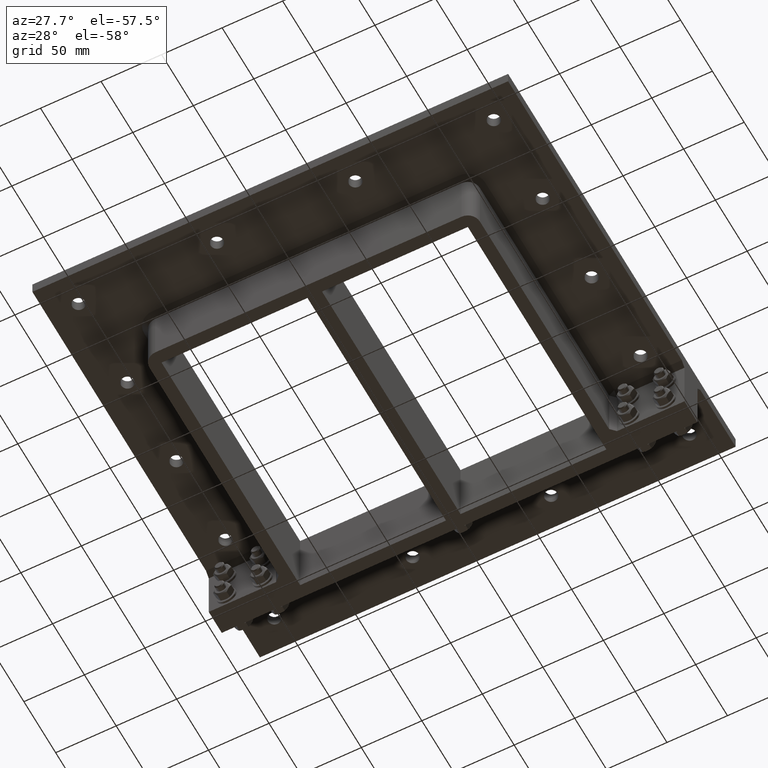
[diagram: clean part render]
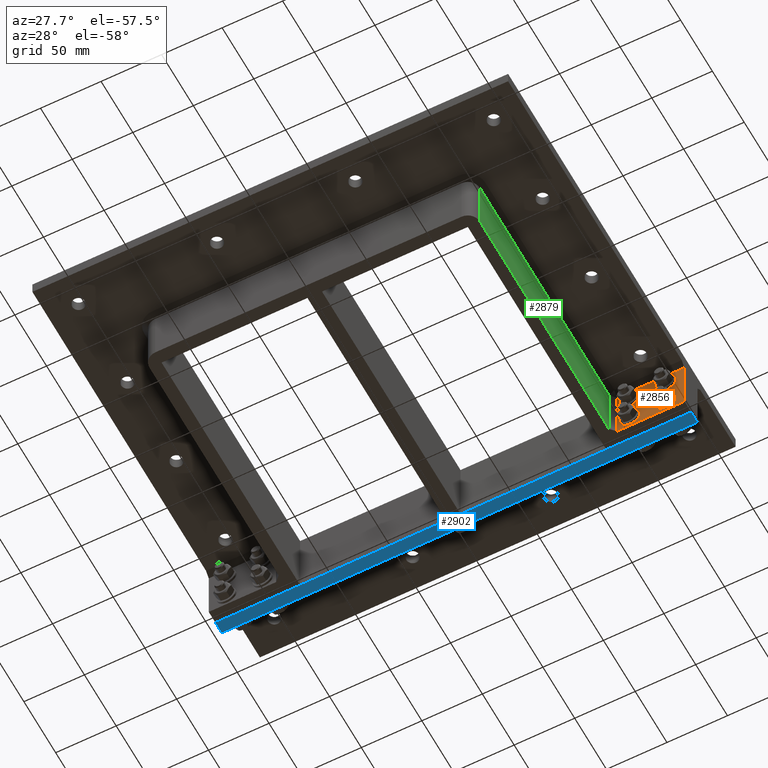
[diagram: same view with three faces highlighted in distinct colors, each labeled with its STEP entity id]
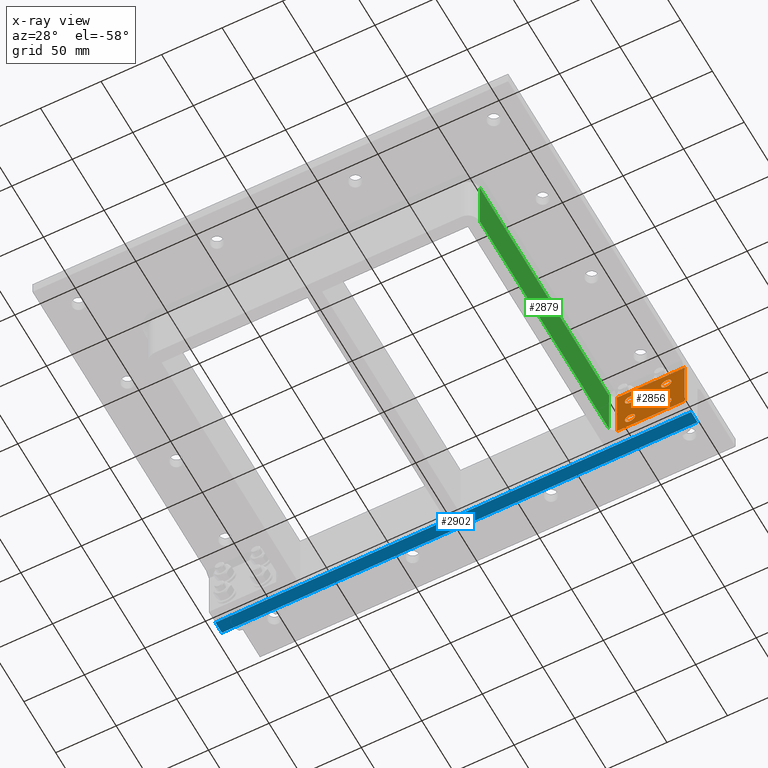
[diagram: x-ray of the same camera — body ghosted, the three highlighted faces saturated]
A machine part, auxiliary view with three faces highlighted in distinct colors.
The next image is the same camera in x-ray (body ghosted, the three faces saturated) — at least one of them is partly hidden behind the body in this view.
Their STEP definitions:

[orange] entity #2856 — the highlighted planar face has unit normal (0, -1, 0).
#237=FACE_BOUND('',#669,.T.);
#238=FACE_BOUND('',#670,.T.);
#239=FACE_BOUND('',#671,.T.);
#240=FACE_BOUND('',#672,.T.);
#342=CIRCLE('',#3253,4.25000000000007);
#344=CIRCLE('',#3256,4.25000000000007);
#346=CIRCLE('',#3259,4.25000000000007);
#348=CIRCLE('',#3262,4.25000000000007);
#493=FACE_OUTER_BOUND('',#668,.T.);
#668=EDGE_LOOP('',(#2085,#2086,#2087,#2088));
#669=EDGE_LOOP('',(#2089));
#670=EDGE_LOOP('',(#2090));
#671=EDGE_LOOP('',(#2091));
#672=EDGE_LOOP('',(#2092));
#907=LINE('',#4454,#1130);
#911=LINE('',#4461,#1134);
#929=LINE('',#4560,#1152);
#930=LINE('',#4561,#1153);
#1130=VECTOR('',#3583,10.);
#1134=VECTOR('',#3589,10.);
#1152=VECTOR('',#3697,10.);
#1153=VECTOR('',#3698,10.);
#1338=VERTEX_POINT('',#4418);
#1349=VERTEX_POINT('',#4452);
#1350=VERTEX_POINT('',#4457);
#1378=VERTEX_POINT('',#4529);
#1380=VERTEX_POINT('',#4535);
#1382=VERTEX_POINT('',#4541);
#1384=VERTEX_POINT('',#4547);
#1387=VERTEX_POINT('',#4559);
#1608=EDGE_CURVE('',#1349,#1338,#907,.T.);
#1612=EDGE_CURVE('',#1338,#1350,#911,.T.);
#1646=EDGE_CURVE('',#1378,#1378,#342,.T.);
#1649=EDGE_CURVE('',#1380,#1380,#344,.T.);
#1652=EDGE_CURVE('',#1382,#1382,#346,.T.);
#1655=EDGE_CURVE('',#1384,#1384,#348,.T.);
#1660=EDGE_CURVE('',#1387,#1349,#929,.T.);
#1661=EDGE_CURVE('',#1350,#1387,#930,.T.);
#2085=ORIENTED_EDGE('',*,*,#1608,.F.);
#2086=ORIENTED_EDGE('',*,*,#1660,.F.);
#2087=ORIENTED_EDGE('',*,*,#1661,.F.);
#2088=ORIENTED_EDGE('',*,*,#1612,.F.);
#2089=ORIENTED_EDGE('',*,*,#1646,.T.);
#2090=ORIENTED_EDGE('',*,*,#1649,.T.);
#2091=ORIENTED_EDGE('',*,*,#1652,.T.);
#2092=ORIENTED_EDGE('',*,*,#1655,.T.);
#2756=PLANE('',#3267);
#2856=ADVANCED_FACE('',(#493,#237,#238,#239,#240),#2756,.T.);
#3253=AXIS2_PLACEMENT_3D('',#4531,#3662,#3663);
#3256=AXIS2_PLACEMENT_3D('',#4537,#3669,#3670);
#3259=AXIS2_PLACEMENT_3D('',#4543,#3676,#3677);
#3262=AXIS2_PLACEMENT_3D('',#4549,#3683,#3684);
#3267=AXIS2_PLACEMENT_3D('',#4558,#3695,#3696);
#3583=DIRECTION('',(0.,0.,1.));
#3589=DIRECTION('',(1.,5.07530525542929E-16,0.));
#3662=DIRECTION('center_axis',(-5.07530525542929E-16,1.,0.));
#3663=DIRECTION('ref_axis',(-1.,0.,0.));
#3669=DIRECTION('center_axis',(-5.07530525542929E-16,1.,0.));
#3670=DIRECTION('ref_axis',(-1.,0.,0.));
#3676=DIRECTION('center_axis',(-5.07530525542929E-16,1.,0.));
#3677=DIRECTION('ref_axis',(-1.,0.,0.));
#3683=DIRECTION('center_axis',(-5.07530525542929E-16,1.,0.));
#3684=DIRECTION('ref_axis',(-1.,0.,0.));
#3695=DIRECTION('center_axis',(5.07530525542929E-16,-1.,0.));
#3696=DIRECTION('ref_axis',(-1.,-5.07530525542929E-16,0.));
#3697=DIRECTION('',(-1.,-5.07530525542929E-16,0.));
#3698=DIRECTION('',(0.,0.,-1.));
#4418=CARTESIAN_POINT('',(140.8,98.5,-14.3));
#4452=CARTESIAN_POINT('',(140.8,98.5,-60.));
#4454=CARTESIAN_POINT('',(140.8,98.5,0.));
#4457=CARTESIAN_POINT('',(196.5,98.5000000000001,-14.3));
#4461=CARTESIAN_POINT('',(98.2499999999999,98.5,-14.3));
#4529=CARTESIAN_POINT('',(185.75,98.5000000000001,-50.));
#4531=CARTESIAN_POINT('Origin',(181.5,98.5000000000001,-50.));
#4535=CARTESIAN_POINT('',(155.75,98.5000000000001,-25.));
#4537=CARTESIAN_POINT('Origin',(151.5,98.5000000000001,-25.));
#4541=CARTESIAN_POINT('',(185.75,98.5000000000001,-25.));
#4543=CARTESIAN_POINT('Origin',(181.5,98.5000000000001,-25.));
#4547=CARTESIAN_POINT('',(155.75,98.5000000000001,-50.));
#4549=CARTESIAN_POINT('Origin',(151.5,98.5000000000001,-50.));
#4558=CARTESIAN_POINT('Origin',(196.5,98.5000000000001,0.));
#4559=CARTESIAN_POINT('',(196.5,98.5000000000001,-60.));
#4560=CARTESIAN_POINT('',(126.5,98.5,-60.));
#4561=CARTESIAN_POINT('',(196.5,98.5000000000001,0.));

[blue] entity #2902 — the highlighted planar face has unit normal (0, 0, 1).
#539=FACE_OUTER_BOUND('',#756,.T.);
#756=EDGE_LOOP('',(#2347,#2348,#2349,#2350));
#988=LINE('',#4705,#1211);
#1007=LINE('',#4790,#1230);
#1011=LINE('',#4806,#1234);
#1013=LINE('',#4809,#1236);
#1211=VECTOR('',#3844,10.);
#1230=VECTOR('',#3935,10.);
#1234=VECTOR('',#3951,10.);
#1236=VECTOR('',#3955,10.);
#1428=VERTEX_POINT('',#4702);
#1429=VERTEX_POINT('',#4704);
#1459=VERTEX_POINT('',#4788);
#1465=VERTEX_POINT('',#4805);
#1731=EDGE_CURVE('',#1429,#1428,#988,.T.);
#1774=EDGE_CURVE('',#1428,#1459,#1007,.T.);
#1782=EDGE_CURVE('',#1465,#1429,#1011,.T.);
#1784=EDGE_CURVE('',#1459,#1465,#1013,.T.);
#2347=ORIENTED_EDGE('',*,*,#1784,.T.);
#2348=ORIENTED_EDGE('',*,*,#1782,.T.);
#2349=ORIENTED_EDGE('',*,*,#1731,.T.);
#2350=ORIENTED_EDGE('',*,*,#1774,.T.);
#2780=PLANE('',#3354);
#2902=ADVANCED_FACE('',(#539),#2780,.F.);
#3354=AXIS2_PLACEMENT_3D('',#4808,#3953,#3954);
#3844=DIRECTION('',(1.,9.0399839155229E-17,0.));
#3935=DIRECTION('',(0.,-1.,0.));
#3951=DIRECTION('',(-3.55271367880051E-15,1.,0.));
#3953=DIRECTION('center_axis',(0.,0.,1.));
#3954=DIRECTION('ref_axis',(1.,0.,0.));
#3955=DIRECTION('',(-1.,0.,0.));
#4702=CARTESIAN_POINT('',(196.5,119.,-60.));
#4704=CARTESIAN_POINT('',(-196.5,119.,-60.));
#4705=CARTESIAN_POINT('',(-196.5,119.,-60.));
#4788=CARTESIAN_POINT('',(196.5,109.,-60.));
#4790=CARTESIAN_POINT('',(196.5,119.,-60.));
#4805=CARTESIAN_POINT('',(-196.5,109.,-60.));
#4806=CARTESIAN_POINT('',(-196.5,109.,-60.));
#4808=CARTESIAN_POINT('Origin',(8.88178419700125E-15,0.,-60.));
#4809=CARTESIAN_POINT('',(196.5,109.,-60.));

[green] entity #2879 — the highlighted planar face has unit normal (1, -0, 0).
#516=FACE_OUTER_BOUND('',#715,.T.);
#715=EDGE_LOOP('',(#2231,#2232,#2233,#2234));
#897=LINE('',#4427,#1120);
#908=LINE('',#4455,#1131);
#950=LINE('',#4602,#1173);
#979=LINE('',#4681,#1202);
#1120=VECTOR('',#3555,10.);
#1131=VECTOR('',#3584,10.);
#1173=VECTOR('',#3726,10.);
#1202=VECTOR('',#3817,10.);
#1339=VERTEX_POINT('',#4420);
#1341=VERTEX_POINT('',#4425);
#1348=VERTEX_POINT('',#4451);
#1404=VERTEX_POINT('',#4601);
#1594=EDGE_CURVE('',#1341,#1339,#897,.T.);
#1609=EDGE_CURVE('',#1339,#1348,#908,.T.);
#1681=EDGE_CURVE('',#1348,#1404,#950,.T.);
#1722=EDGE_CURVE('',#1341,#1404,#979,.T.);
#2231=ORIENTED_EDGE('',*,*,#1594,.F.);
#2232=ORIENTED_EDGE('',*,*,#1722,.T.);
#2233=ORIENTED_EDGE('',*,*,#1681,.F.);
#2234=ORIENTED_EDGE('',*,*,#1609,.F.);
#2769=PLANE('',#3302);
#2879=ADVANCED_FACE('',(#516),#2769,.T.);
#3302=AXIS2_PLACEMENT_3D('',#4680,#3815,#3816);
#3555=DIRECTION('',(1.6296851737617E-16,1.,0.));
#3584=DIRECTION('',(0.,0.,-1.));
#3726=DIRECTION('',(-1.6296851737617E-16,-1.,0.));
#3815=DIRECTION('center_axis',(1.,-1.6296851737617E-16,0.));
#3816=DIRECTION('ref_axis',(-1.6296851737617E-16,-1.,0.));
#3817=DIRECTION('',(0.,0.,-1.));
#4420=CARTESIAN_POINT('',(136.5,94.2,-14.3));
#4425=CARTESIAN_POINT('',(136.5,-109.,-14.3));
#4427=CARTESIAN_POINT('',(136.5,54.5,-14.3));
#4451=CARTESIAN_POINT('',(136.5,94.2,-60.));
#4455=CARTESIAN_POINT('',(136.5,94.2,0.));
#4601=CARTESIAN_POINT('',(136.5,-109.,-60.));
#4602=CARTESIAN_POINT('',(136.5,-109.,-60.));
#4680=CARTESIAN_POINT('Origin',(136.5,109.,0.));
#4681=CARTESIAN_POINT('',(136.5,-109.,0.));